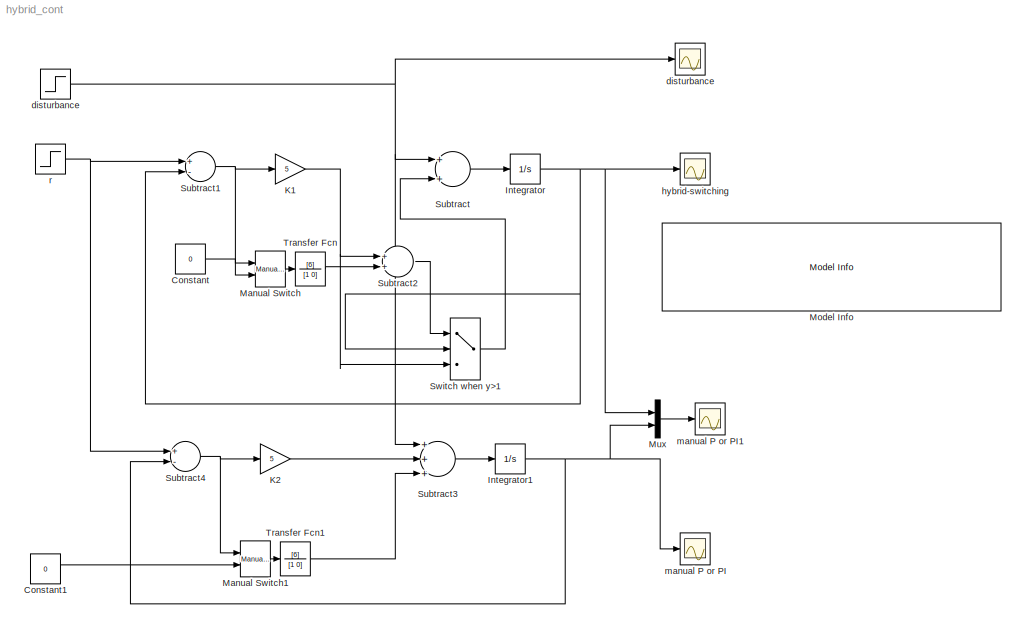
MODEL hybrid_cont
KIND model
BLOCK [Constant] Constant
  Value = 0
BLOCK [Constant] Constant1
  Value = 0
BLOCK [Integrator] Integrator
  Ports = [1, 1]
BLOCK [Integrator] Integrator1
  Ports = [1, 1]
BLOCK [Gain] K1
  Gain = 5
  OutDataTypeMode = Inherit via internal rule
  ParameterDataTypeMode = Inherit via internal rule
  SaturateOnIntegerOverflow = off
BLOCK [Gain] K2
  Gain = 5
  OutDataTypeMode = Inherit via internal rule
  ParameterDataTypeMode = Inherit via internal rule
  SaturateOnIntegerOverflow = off
BLOCK [Reference] Manual Switch  REF=simulink/Signal\nRouting/Manual Switch
  Ports = [2, 1]
  ShowPortLabels = on
  SourceBlock = simulink/Signal\nRouting/Manual Switch
  SourceType = Manual Switch
  action = 0
  sw = 0
BLOCK [Reference] Manual Switch1  REF=simulink/Signal\nRouting/Manual Switch
  Ports = [2, 1]
  ShowPortLabels = on
  SourceBlock = simulink/Signal\nRouting/Manual Switch
  SourceType = Manual Switch
  action = 0
  sw = 1
BLOCK [Reference] Model Info  REF=simulink/Model-Wide\nUtilities/Model Info
  BlockCM = None
  DisplayStringWithTags = A. Feuer, G.C. Goodwin, M. Salgado, \nPotentia benefits of hybrid control for linear time invariant plants \nProceedings of ACC, \nJune 1997,p 2790-2794.\\n\n%<LastModificationDate>
  Frame = on
  HorizontalTextAlignment = Left
  InitialBlockCM = None
  LeftAlignmentValue = 0.02
  MaskDisplayString = A. Feuer, G.C. Goodwin, M. Salgado, \\nPotentia benefits of hybrid control for linear time invariant plants \\nProceedings of ACC, \\nJune 1997,p 2790-2794.\\n\\n25-Aug-2007 16:18:47
  Ports = []
  ShowPortLabels = on
  SourceBlock = simulink/Model-Wide\nUtilities/Model Info
  SourceBlockDiagram = hybrid_cont
  SourceType = CMBlock
  TagMaxNumber = 20
BLOCK [Mux] Mux
  DisplayOption = bar
  Inputs = 2
  Ports = [2, 1]
BLOCK [Sum] Subtract
  InputSameDT = off
  OutDataTypeMode = Inherit via internal rule
  OutScaling = 2^-10
  Ports = [2, 1]
  SaturateOnIntegerOverflow = off
BLOCK [Sum] Subtract1
  InputSameDT = off
  Inputs = +-
  OutDataTypeMode = Inherit via internal rule
  OutScaling = 2^-10
  Ports = [2, 1]
  SaturateOnIntegerOverflow = off
BLOCK [Sum] Subtract2
  InputSameDT = off
  OutDataTypeMode = Inherit via internal rule
  OutScaling = 2^-10
  Ports = [2, 1]
  SaturateOnIntegerOverflow = off
BLOCK [Sum] Subtract3
  InputSameDT = off
  Inputs = +++
  OutDataTypeMode = Inherit via internal rule
  OutScaling = 2^-10
  Ports = [3, 1]
  SaturateOnIntegerOverflow = off
BLOCK [Sum] Subtract4
  InputSameDT = off
  Inputs = +-
  OutDataTypeMode = Inherit via internal rule
  OutScaling = 2^-10
  Ports = [2, 1]
  SaturateOnIntegerOverflow = off
BLOCK [Switch] Switch when y>1
  InputSameDT = off
  SaturateOnIntegerOverflow = off
  Threshold = 1
BLOCK [TransferFcn] Transfer Fcn
  Denominator = [1 0]
  Numerator = [6]
BLOCK [TransferFcn] Transfer Fcn1
  Denominator = [1 0]
  Numerator = [6]
BLOCK [Step] disturbance
  After = -1
  SampleTime = 0
  Time = 5
BLOCK [Scope] disturbance  
  DataFormat = StructureWithTime
  NumInputPorts = 1
  Ports = [1]
  SaveName = ScopeData1
BLOCK [Scope] hybrid-switching
  DataFormat = StructureWithTime
  NumInputPorts = 1
  Ports = [1]
  YMax = 1.05
  YMin = 0.95
BLOCK [Scope] manual P or PI
  DataFormat = StructureWithTime
  NumInputPorts = 1
  Ports = [1]
  SaveName = ScopeData3
  YMax = 1.05
  YMin = 0.95
BLOCK [Scope] manual P or PI1
  DataFormat = StructureWithTime
  NumInputPorts = 1
  Ports = [1]
  SaveName = ScopeData2
  YMax = 1.05
  YMin = 0.95
BLOCK [Step] r
  SampleTime = 0
  Time = 0
LINE Constant1:1 -> Manual Switch1:2
LINE Constant:1 -> Manual Switch:2
NET Integrator1:1 -> Mux:2, Subtract4:2, manual P or PI:1
NET Integrator:1 -> Mux:1, Subtract1:2, Switch when y>1:2, hybrid-switching:1
NET K1:1 -> Subtract2:1, Switch when y>1:3
LINE K2:1 -> Subtract3:2
LINE Manual Switch1:1 -> Transfer Fcn1:1
LINE Manual Switch:1 -> Transfer Fcn:1
LINE Mux:1 -> manual P or PI1:1
NET Subtract1:1 -> K1:1, Manual Switch:1
LINE Subtract2:1 -> Switch when y>1:1
LINE Subtract3:1 -> Integrator1:1
NET Subtract4:1 -> K2:1, Manual Switch1:1
LINE Subtract:1 -> Integrator:1
LINE Switch when y>1:1 -> Subtract:2
LINE Transfer Fcn1:1 -> Subtract3:3
LINE Transfer Fcn:1 -> Subtract2:2
NET disturbance:1 -> Subtract3:1, Subtract:1, disturbance  :1
NET r:1 -> Subtract1:1, Subtract4:1
note: NET lines group one-source signal fan-out (src -> all destinations, sorted); 1:1 wires keep LINE
